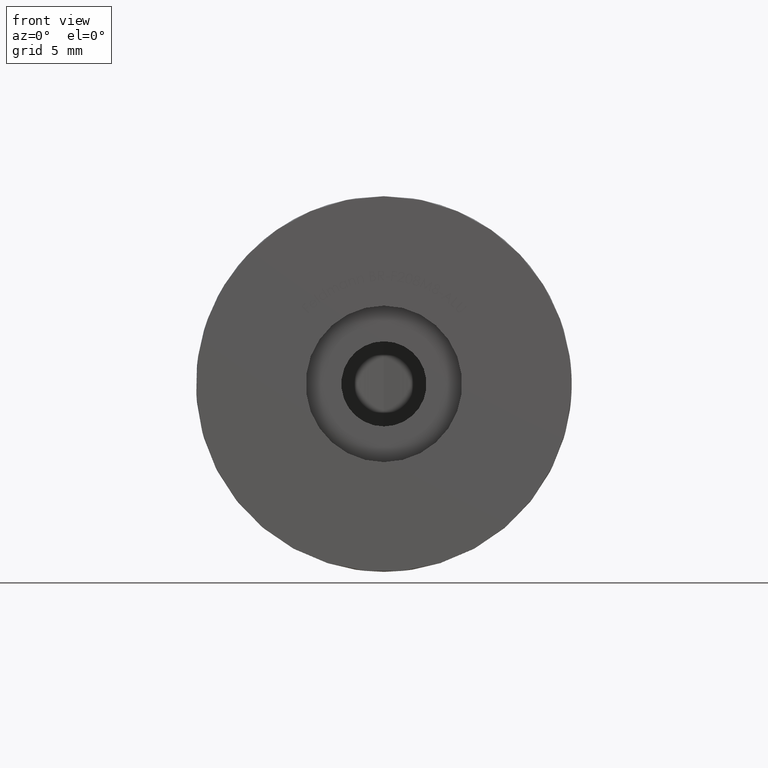
[diagram: clean part render]
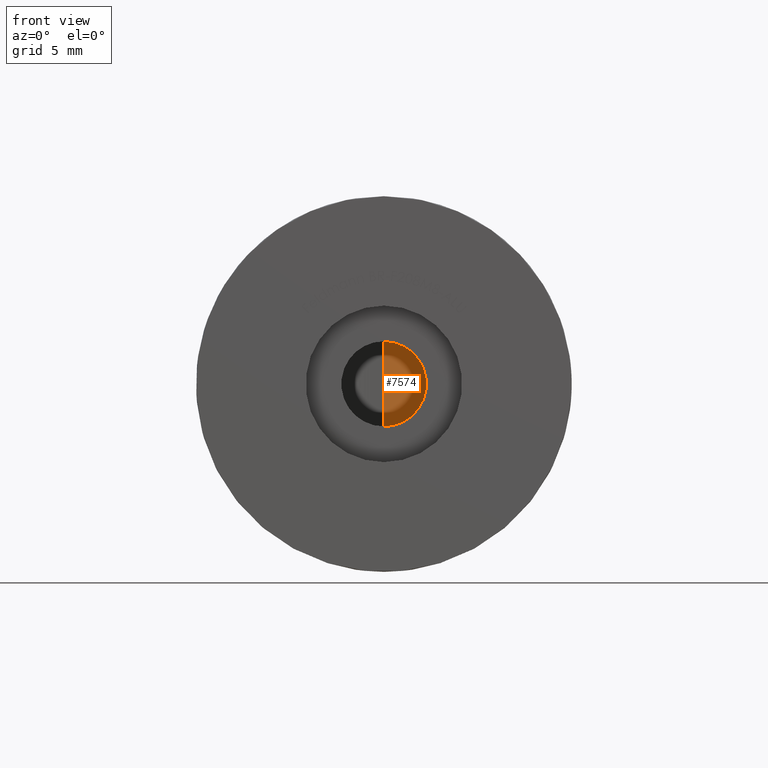
[diagram: same view with one face highlighted and labeled with its STEP entity id]
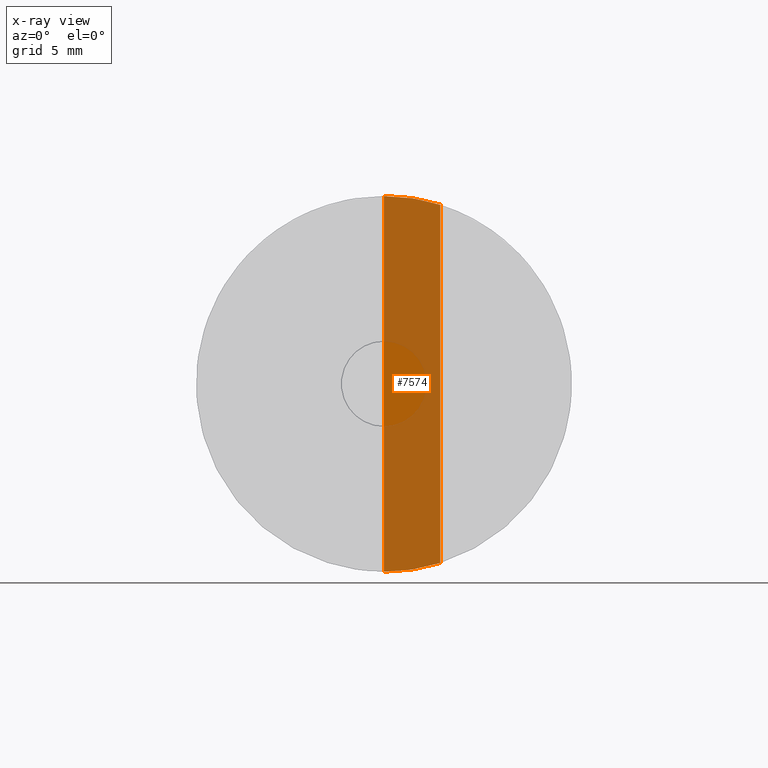
[diagram: x-ray of the same camera — body ghosted, the highlighted face saturated]
A machine part, front view. The second image highlights one B-rep face of the part: STEP entity #7574.
The next image is the same camera in x-ray: the body ghosted, the highlighted face saturated — about 87% of this face is hidden behind the body in this view.
In plain terms, the highlighted planar face has unit normal (0.0523, 0.9986, 0).
Its self-contained STEP definition (entity closure, byte-faithful):
#120 = LINE ( 'NONE', #4248, #14565 ) ;
#378 = DIRECTION ( 'NONE',  ( 0.05233595624294736700, -0.9986295347545737200, 0.0000000000000000000 ) ) ;
#1078 = CARTESIAN_POINT ( 'NONE',  ( 0.0000000000000000000, 4.500000000000000900, 15.00000000000000000 ) ) ;
#1381 = CARTESIAN_POINT ( 'NONE',  ( 0.0000000000000000000, 4.500000000000000900, -15.00000000000000000 ) ) ;
#1411 =( BOUNDED_CURVE ( )  B_SPLINE_CURVE ( 3, ( #15866, #17194, #9198, #2491 ),
 .UNSPECIFIED., .F., .T. ) 
 B_SPLINE_CURVE_WITH_KNOTS ( ( 4, 4 ),
 ( 1.570796326794896600, 1.875488980810294400 ),
 .UNSPECIFIED. ) 
 CURVE ( )  GEOMETRIC_REPRESENTATION_ITEM ( )  RATIONAL_B_SPLINE_CURVE ( ( 1.000000000000000000, 0.9922784838777377600, 0.9922784838777377600, 1.000000000000000000 ) ) 
 REPRESENTATION_ITEM ( '' )  );
#1591 = EDGE_LOOP ( 'NONE', ( #1786, #8122, #14715, #8011 ) ) ;
#1675 = DIRECTION ( 'NONE',  ( -0.0000000000000000000, -0.0000000000000000000, 1.000000000000000000 ) ) ;
#1786 = ORIENTED_EDGE ( 'NONE', *, *, #6466, .T. ) ;
#2491 = CARTESIAN_POINT ( 'NONE',  ( 4.500000000000003600, 4.735835006773702300, -14.30908802125418300 ) ) ;
#2851 = EDGE_CURVE ( 'NONE', #14286, #11657, #16222, .T. ) ;
#3171 = DIRECTION ( 'NONE',  ( 0.9986295347545737200, 0.05233595624294736700, 0.0000000000000000000 ) ) ;
#4064 = FACE_OUTER_BOUND ( 'NONE', #1591, .T. ) ;
#4248 = CARTESIAN_POINT ( 'NONE',  ( 0.0000000000000000000, 4.500000000000000900, -15.00000000000000000 ) ) ;
#4900 = VERTEX_POINT ( 'NONE', #10401 ) ;
#5513 = DIRECTION ( 'NONE',  ( -0.0000000000000000000, -0.0000000000000000000, 1.000000000000000000 ) ) ;
#5649 = CARTESIAN_POINT ( 'NONE',  ( 4.500000000000003600, 4.735835006773702300, -15.00000000000000000 ) ) ;
#5962 = CARTESIAN_POINT ( 'NONE',  ( 0.0000000000000000000, 4.500000000000000900, 15.00000000000000000 ) ) ;
#6466 = EDGE_CURVE ( 'NONE', #14866, #11657, #120, .T. ) ;
#6609 = AXIS2_PLACEMENT_3D ( 'NONE', #8415, #378, #3171 ) ;
#7574 = ADVANCED_FACE ( 'NONE', ( #4064 ), #15009, .F. ) ;
#8011 = ORIENTED_EDGE ( 'NONE', *, *, #15773, .F. ) ;
#8122 = ORIENTED_EDGE ( 'NONE', *, *, #2851, .F. ) ;
#8415 = CARTESIAN_POINT ( 'NONE',  ( 4.500000000000003600, 4.735835006773702300, -15.00000000000000000 ) ) ;
#9198 = CARTESIAN_POINT ( 'NONE',  ( 3.041058575645908300, 4.659375126619265100, -14.76790387309894600 ) ) ;
#10401 = CARTESIAN_POINT ( 'NONE',  ( 4.500000000000003600, 4.735835006773702300, -14.30908802125418300 ) ) ;
#10984 = VECTOR ( 'NONE', #5513, 1000.000000000000000 ) ;
#11542 = CARTESIAN_POINT ( 'NONE',  ( 4.500000000000003600, 4.735835006773702300, 14.30908802125418300 ) ) ;
#11657 = VERTEX_POINT ( 'NONE', #5962 ) ;
#12596 = CARTESIAN_POINT ( 'NONE',  ( 4.500000000000003600, 4.735835006773702300, 14.30908802125418300 ) ) ;
#14163 = LINE ( 'NONE', #5649, #10984 ) ;
#14286 = VERTEX_POINT ( 'NONE', #12596 ) ;
#14426 = CARTESIAN_POINT ( 'NONE',  ( 1.529386172815877700, 4.580151732983479100, 14.99999999999999800 ) ) ;
#14565 = VECTOR ( 'NONE', #1675, 1000.000000000000000 ) ;
#14715 = ORIENTED_EDGE ( 'NONE', *, *, #16326, .F. ) ;
#14866 = VERTEX_POINT ( 'NONE', #1381 ) ;
#15009 = PLANE ( 'NONE',  #6609 ) ;
#15773 = EDGE_CURVE ( 'NONE', #14866, #4900, #1411, .T. ) ;
#15866 = CARTESIAN_POINT ( 'NONE',  ( 0.0000000000000000000, 4.500000000000000900, -15.00000000000000000 ) ) ;
#16222 =( BOUNDED_CURVE ( )  B_SPLINE_CURVE ( 3, ( #11542, #16990, #14426, #1078 ),
 .UNSPECIFIED., .F., .F. ) 
 B_SPLINE_CURVE_WITH_KNOTS ( ( 4, 4 ),
 ( 4.407696326369292100, 4.712388980384689700 ),
 .UNSPECIFIED. ) 
 CURVE ( )  GEOMETRIC_REPRESENTATION_ITEM ( )  RATIONAL_B_SPLINE_CURVE ( ( 1.000000000000000000, 0.9922784838777378700, 0.9922784838777378700, 1.000000000000000000 ) ) 
 REPRESENTATION_ITEM ( '' )  );
#16326 = EDGE_CURVE ( 'NONE', #4900, #14286, #14163, .T. ) ;
#16990 = CARTESIAN_POINT ( 'NONE',  ( 3.041058575645909600, 4.659375126619265100, 14.76790387309894600 ) ) ;
#17194 = CARTESIAN_POINT ( 'NONE',  ( 1.529386172815875300, 4.580151732983479100, -15.00000000000000000 ) ) ;